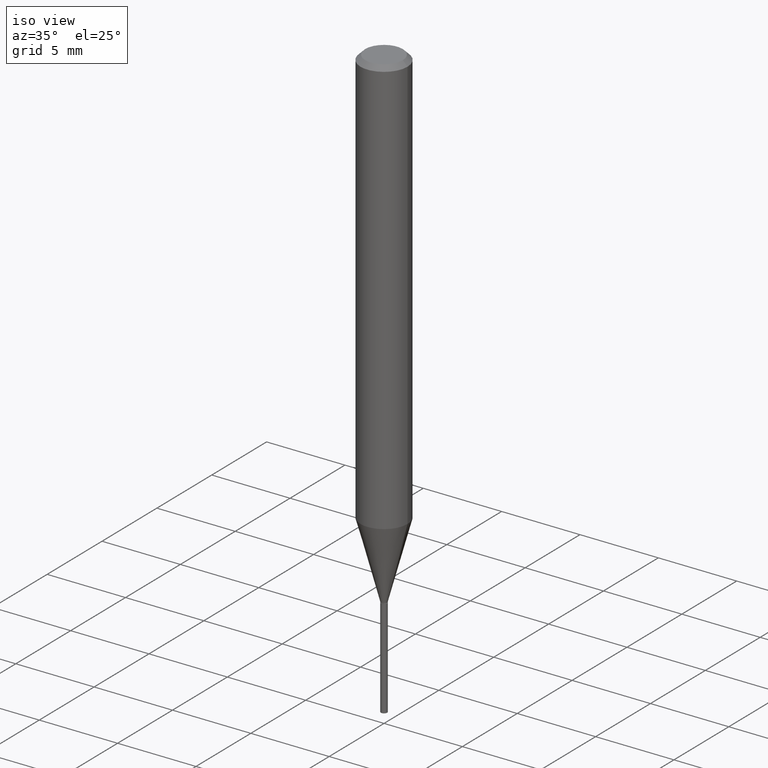
[diagram: clean part render]
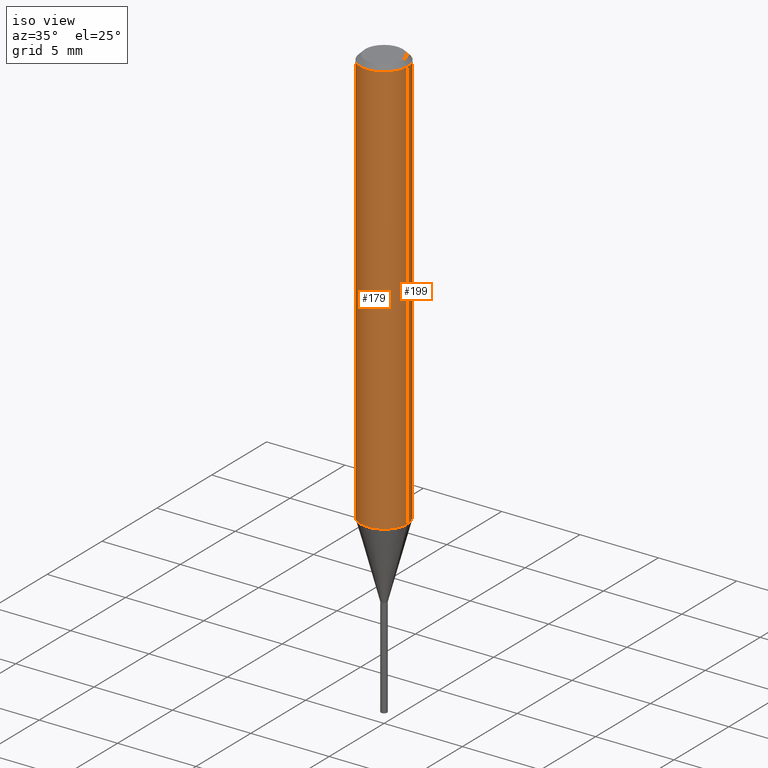
[diagram: same view with one multi-face feature highlighted, each face labeled with its STEP entity id]
A machine part, iso view. The highlighted faces form ONE feature: a constant-radius fillet chain: 2 tangent blend faces with common blend radius 1.4999 mm. The faces share edges in the B-rep.
Their STEP definitions:
[1] entity #179 (Cylinder):
#14 = DIRECTION ( 'NONE',  ( 1.000000000000000000, -6.982962677686266711E-15, 4.876176775795936353E-29 ) ) ;
#40 = VECTOR ( 'NONE', #334, 39.37007874015748143 ) ;
#54 = CARTESIAN_POINT ( 'NONE',  ( 0.000000000000000000, 0.000000000000000000, 0.000000000000000000 ) ) ;
#56 = FACE_OUTER_BOUND ( 'NONE', #76, .T. ) ;
#58 = VERTEX_POINT ( 'NONE', #377 ) ;
#60 = CARTESIAN_POINT ( 'NONE',  ( -0.05904999999999999832, -1.434347320989793851E-15, -0.01181000000000007218 ) ) ;
#68 = CARTESIAN_POINT ( 'NONE',  ( 0.05905000000000006771, -4.123439461173745257E-16, 2.879382386107503723E-30 ) ) ;
#72 = VECTOR ( 'NONE', #327, 39.37007874015748143 ) ;
#76 = EDGE_LOOP ( 'NONE', ( #358, #379, #198, #304 ) ) ;
#82 = EDGE_CURVE ( 'NONE', #335, #300, #251, .T. ) ;
#91 = CYLINDRICAL_SURFACE ( 'NONE', #207, 0.05905000000000006771 ) ;
#98 = AXIS2_PLACEMENT_3D ( 'NONE', #476, #205, #249 ) ;
#104 = LINE ( 'NONE', #257, #72 ) ;
#142 = DIRECTION ( 'NONE',  ( -2.445468806185136597E-29, 3.491481338843145583E-15, 1.000000000000000000 ) ) ;
#179 = ADVANCED_FACE ( 'NONE', ( #56 ), #91, .T. ) ;
#183 = CARTESIAN_POINT ( 'NONE',  ( 0.05904999999999999832, -4.535783407291118600E-16, -0.01181000000000007218 ) ) ;
#198 = ORIENTED_EDGE ( 'NONE', *, *, #460, .T. ) ;
#205 = DIRECTION ( 'NONE',  ( -2.445468806185136597E-29, 3.491481338843145583E-15, 1.000000000000000000 ) ) ;
#207 = AXIS2_PLACEMENT_3D ( 'NONE', #54, #209, #14 ) ;
#209 = DIRECTION ( 'NONE',  ( -2.445468806185136597E-29, 3.491481338843145583E-15, 1.000000000000000000 ) ) ;
#249 = DIRECTION ( 'NONE',  ( 1.000000000000000000, -6.982962677686266711E-15, 0.000000000000000000 ) ) ;
#251 = CIRCLE ( 'NONE', #98, 0.05904999999999999832 ) ;
#257 = CARTESIAN_POINT ( 'NONE',  ( -0.05905000000000006771, 4.195754854663396409E-16, -2.904631170795525045E-30 ) ) ;
#298 = VERTEX_POINT ( 'NONE', #439 ) ;
#300 = VERTEX_POINT ( 'NONE', #183 ) ;
#304 = ORIENTED_EDGE ( 'NONE', *, *, #82, .F. ) ;
#311 = EDGE_CURVE ( 'NONE', #298, #58, #314, .T. ) ;
#314 = CIRCLE ( 'NONE', #375, 0.05905000000000013710 ) ;
#326 = EDGE_CURVE ( 'NONE', #298, #335, #104, .T. ) ;
#327 = DIRECTION ( 'NONE',  ( -2.445468806185136877E-29, 3.491481338843145188E-15, 1.000000000000000000 ) ) ;
#334 = DIRECTION ( 'NONE',  ( -2.445468806185136877E-29, 3.491481338843145188E-15, 1.000000000000000000 ) ) ;
#335 = VERTEX_POINT ( 'NONE', #60 ) ;
#358 = ORIENTED_EDGE ( 'NONE', *, *, #326, .F. ) ;
#362 = DIRECTION ( 'NONE',  ( 1.000000000000000000, -6.982962677686264344E-15, 0.000000000000000000 ) ) ;
#364 = CARTESIAN_POINT ( 'NONE',  ( 2.568131543195755093E-29, -3.666611218300530537E-15, -1.050159191031337924 ) ) ;
#375 = AXIS2_PLACEMENT_3D ( 'NONE', #364, #142, #362 ) ;
#377 = CARTESIAN_POINT ( 'NONE',  ( 0.05905000000000013710, -4.078955164417905458E-15, -1.050159191031337924 ) ) ;
#379 = ORIENTED_EDGE ( 'NONE', *, *, #311, .T. ) ;
#439 = CARTESIAN_POINT ( 'NONE',  ( -0.05905000000000013710, -3.247035732834190256E-15, -1.050159191031337924 ) ) ;
#447 = LINE ( 'NONE', #68, #40 ) ;
#460 = EDGE_CURVE ( 'NONE', #58, #300, #447, .T. ) ;
#476 = CARTESIAN_POINT ( 'NONE',  ( 2.888098660104664204E-31, -4.123439461173780263E-17, -0.01181000000000007218 ) ) ;
[2] entity #199 (Cylinder):
#15 = AXIS2_PLACEMENT_3D ( 'NONE', #472, #130, #428 ) ;
#40 = VECTOR ( 'NONE', #334, 39.37007874015748143 ) ;
#58 = VERTEX_POINT ( 'NONE', #377 ) ;
#60 = CARTESIAN_POINT ( 'NONE',  ( -0.05904999999999999832, -1.434347320989793851E-15, -0.01181000000000007218 ) ) ;
#68 = CARTESIAN_POINT ( 'NONE',  ( 0.05905000000000006771, -4.123439461173745257E-16, 2.879382386107503723E-30 ) ) ;
#72 = VECTOR ( 'NONE', #327, 39.37007874015748143 ) ;
#89 = CIRCLE ( 'NONE', #15, 0.05904999999999999832 ) ;
#104 = LINE ( 'NONE', #257, #72 ) ;
#107 = ORIENTED_EDGE ( 'NONE', *, *, #440, .T. ) ;
#130 = DIRECTION ( 'NONE',  ( -2.445468806185136597E-29, 3.491481338843145583E-15, 1.000000000000000000 ) ) ;
#147 = ORIENTED_EDGE ( 'NONE', *, *, #460, .F. ) ;
#149 = AXIS2_PLACEMENT_3D ( 'NONE', #355, #415, #446 ) ;
#172 = CYLINDRICAL_SURFACE ( 'NONE', #480, 0.05905000000000006771 ) ;
#183 = CARTESIAN_POINT ( 'NONE',  ( 0.05904999999999999832, -4.535783407291118600E-16, -0.01181000000000007218 ) ) ;
#199 = ADVANCED_FACE ( 'NONE', ( #423 ), #172, .T. ) ;
#227 = EDGE_LOOP ( 'NONE', ( #107, #309, #269, #147 ) ) ;
#244 = DIRECTION ( 'NONE',  ( -2.445468806185136597E-29, 3.491481338843145583E-15, 1.000000000000000000 ) ) ;
#256 = EDGE_CURVE ( 'NONE', #300, #335, #89, .T. ) ;
#257 = CARTESIAN_POINT ( 'NONE',  ( -0.05905000000000006771, 4.195754854663396409E-16, -2.904631170795525045E-30 ) ) ;
#269 = ORIENTED_EDGE ( 'NONE', *, *, #256, .F. ) ;
#290 = DIRECTION ( 'NONE',  ( 1.000000000000000000, -6.982962677686266711E-15, 4.876176775795936353E-29 ) ) ;
#298 = VERTEX_POINT ( 'NONE', #439 ) ;
#300 = VERTEX_POINT ( 'NONE', #183 ) ;
#309 = ORIENTED_EDGE ( 'NONE', *, *, #326, .T. ) ;
#326 = EDGE_CURVE ( 'NONE', #298, #335, #104, .T. ) ;
#327 = DIRECTION ( 'NONE',  ( -2.445468806185136877E-29, 3.491481338843145188E-15, 1.000000000000000000 ) ) ;
#334 = DIRECTION ( 'NONE',  ( -2.445468806185136877E-29, 3.491481338843145188E-15, 1.000000000000000000 ) ) ;
#335 = VERTEX_POINT ( 'NONE', #60 ) ;
#351 = CIRCLE ( 'NONE', #149, 0.05905000000000013710 ) ;
#355 = CARTESIAN_POINT ( 'NONE',  ( 2.568131543195755093E-29, -3.666611218300530537E-15, -1.050159191031337924 ) ) ;
#377 = CARTESIAN_POINT ( 'NONE',  ( 0.05905000000000013710, -4.078955164417905458E-15, -1.050159191031337924 ) ) ;
#415 = DIRECTION ( 'NONE',  ( -2.445468806185136597E-29, 3.491481338843145583E-15, 1.000000000000000000 ) ) ;
#423 = FACE_OUTER_BOUND ( 'NONE', #227, .T. ) ;
#428 = DIRECTION ( 'NONE',  ( 1.000000000000000000, -6.982962677686266711E-15, 0.000000000000000000 ) ) ;
#439 = CARTESIAN_POINT ( 'NONE',  ( -0.05905000000000013710, -3.247035732834190256E-15, -1.050159191031337924 ) ) ;
#440 = EDGE_CURVE ( 'NONE', #58, #298, #351, .T. ) ;
#446 = DIRECTION ( 'NONE',  ( 1.000000000000000000, -6.982962677686264344E-15, 0.000000000000000000 ) ) ;
#447 = LINE ( 'NONE', #68, #40 ) ;
#460 = EDGE_CURVE ( 'NONE', #58, #300, #447, .T. ) ;
#468 = CARTESIAN_POINT ( 'NONE',  ( 0.000000000000000000, 0.000000000000000000, 0.000000000000000000 ) ) ;
#472 = CARTESIAN_POINT ( 'NONE',  ( 2.888098660104664204E-31, -4.123439461173780263E-17, -0.01181000000000007218 ) ) ;
#480 = AXIS2_PLACEMENT_3D ( 'NONE', #468, #244, #290 ) ;